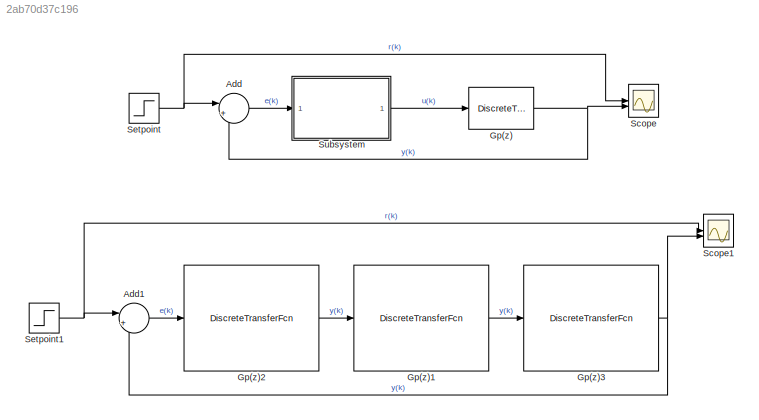
MODEL slx_2ab70d37c196
KIND model
CONFIG AbsTol = auto
CONFIG EnableMultiTasking = off
CONFIG FixedStep = auto
CONFIG MaxStep = auto
CONFIG MinStep = auto
CONFIG RelTol = 1e-3
CONFIG SampleTimeConstraint = Unconstrained
CONFIG SolverName = VariableStepAuto
CONFIG StartTime = 0.0
CONFIG StopTime = 100
BLOCK [Sum] Add
  Inputs = |+-
BLOCK [Sum] Add1
  Inputs = |+-
BLOCK [DiscreteTransferFcn] Gp(z)
  Denominator = Gpz_den
  InputPortMap = u0
  Numerator = Gpz_num
  SampleTime = T
BLOCK [DiscreteTransferFcn] Gp(z)1
  Denominator = [1 -.9048]
  InputPortMap = u0
  Numerator = [.4758]
  SampleTime = T
BLOCK [DiscreteTransferFcn] Gp(z)2
  Denominator = [.4758 0 0 -.4758]
  InputPortMap = u0
  Numerator = [1 -.9048 0 0]
  SampleTime = T
BLOCK [DiscreteTransferFcn] Gp(z)3
  Denominator = [1 0 0]
  InputPortMap = u0
  SampleTime = T
BLOCK [Scope] Scope
  Floating = off
  NumInputPorts = 2
  ScopeSpecificationString = Simulink.scopes.TimeScopeBlockCfg('CurrentConfiguration', extmgr.ConfigurationSet(extmgr.Configuration('Core','General UI',true),extmgr.Configuration('Core','Source UI',true),extmgr.Configuration('Sources','WiredSimulink',true),extmgr.Configuration('Visuals','Time Domain',true,'SerializedDisplays',{struct('MinYLimReal','-0.52547','MaxYLimReal','13.18955','YLabelReal','','MinYLimMag','0.00000','Max...<+1408ch>
BLOCK [Scope] Scope1
  Floating = off
  NumInputPorts = 2
  ScopeSpecificationString = Simulink.scopes.TimeScopeBlockCfg('CurrentConfiguration', extmgr.ConfigurationSet(extmgr.Configuration('Core','General UI',true),extmgr.Configuration('Core','Source UI',true),extmgr.Configuration('Sources','WiredSimulink',true,'DataLoggingVariableName','ScopeData1'),extmgr.Configuration('Visuals','Time Domain',true,'SerializedDisplays',{struct('MinYLimReal','-1.00000','MaxYLimReal','9.00000','YLab...<+1399ch>
BLOCK [Step] Setpoint
  After = 8
  SampleTime = T
  Time = 2
BLOCK [Step] Setpoint1
  After = 8
  SampleTime = T
  Time = 2
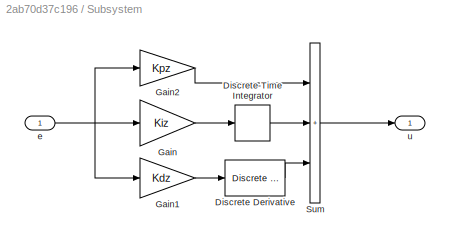
BLOCK [SubSystem] Subsystem
BLOCK [Reference] Subsystem/Discrete Derivative  REF=simulink/Discrete/Discrete Derivative
  SourceBlock = simulink/Discrete/Discrete Derivative
  SourceType = Discrete Derivative
BLOCK [DiscreteIntegrator] Subsystem/Discrete-Time Integrator
  ICPrevOutput = DiscIntNeverNeededParam
  ICPrevScaledInput = DiscIntNeverNeededParam
  InitialConditionSetting = Auto
  SampleTime = T
BLOCK [Gain] Subsystem/Gain
  Gain = Kiz
BLOCK [Gain] Subsystem/Gain1
  Gain = Kdz
BLOCK [Gain] Subsystem/Gain2
  Gain = Kpz
BLOCK [Sum] Subsystem/Sum
  IconShape = rectangular
  Inputs = +++
BLOCK [Inport] Subsystem/e
BLOCK [Outport] Subsystem/u
LINE Add1:1 -> Gp(z)2:1
LINE Add:1 -> Subsystem:1
LINE Gp(z)1:1 -> Gp(z)3:1
LINE Gp(z)2:1 -> Gp(z)1:1
NET Gp(z)3:1 -> Add1:2, Scope1:2
NET Gp(z):1 -> Add:2, Scope:2
NET Setpoint1:1 -> Add1:1, Scope1:1
NET Setpoint:1 -> Add:1, Scope:1
LINE Subsystem/Discrete Derivative:1 -> Subsystem/Sum:3
LINE Subsystem/Discrete-Time Integrator:1 -> Subsystem/Sum:2
LINE Subsystem/Gain1:1 -> Subsystem/Discrete Derivative:1
LINE Subsystem/Gain2:1 -> Subsystem/Sum:1
LINE Subsystem/Gain:1 -> Subsystem/Discrete-Time Integrator:1
LINE Subsystem/Sum:1 -> Subsystem/u:1
NET Subsystem/e:1 -> Subsystem/Gain1:1, Subsystem/Gain2:1, Subsystem/Gain:1
LINE Subsystem:1 -> Gp(z):1
note: NET lines group one-source signal fan-out (src -> all destinations, sorted); 1:1 wires keep LINE
